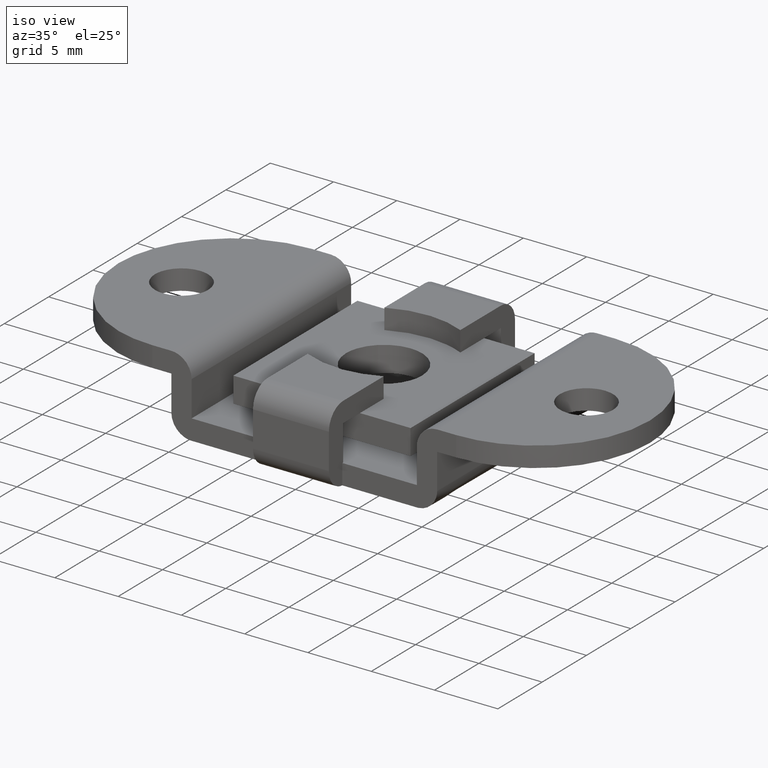
[diagram: clean part render]
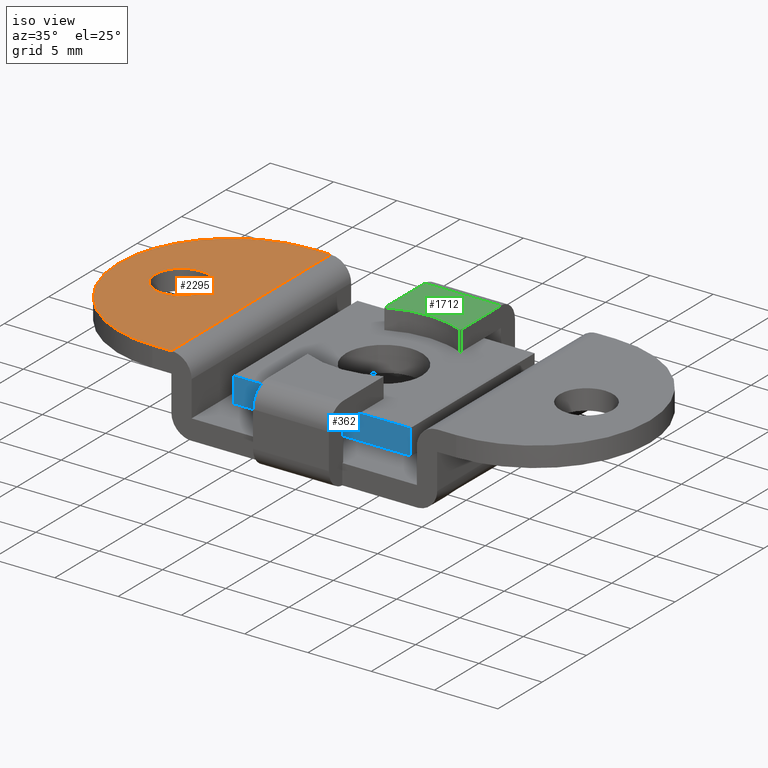
[diagram: same view with three faces highlighted in distinct colors, each labeled with its STEP entity id]
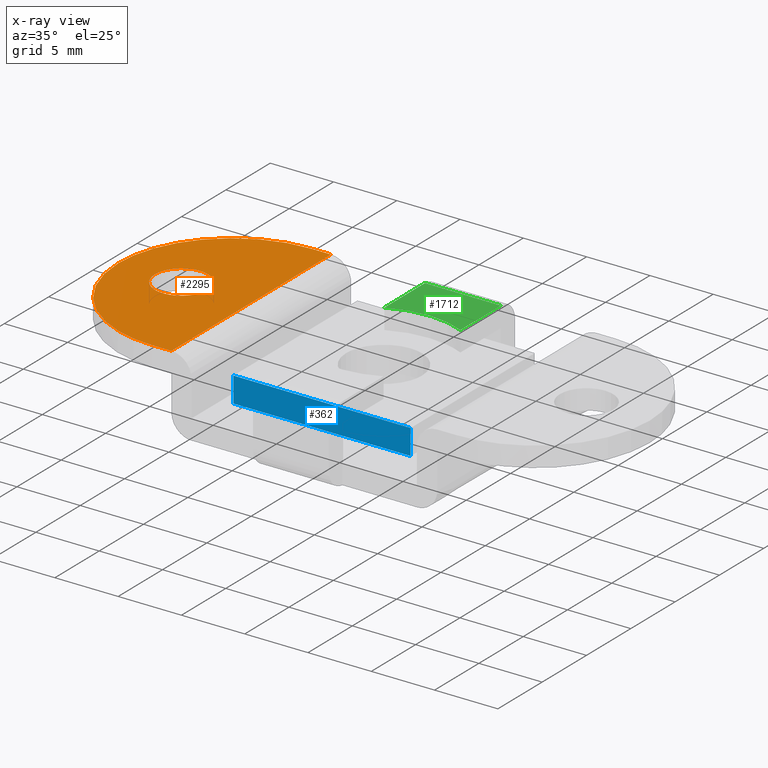
[diagram: x-ray of the same camera — body ghosted, the three highlighted faces saturated]
A machine part, iso view with three faces highlighted in distinct colors.
The next image is the same camera in x-ray (body ghosted, the three faces saturated) — at least one of them is partly hidden behind the body in this view.
Their STEP definitions:

[orange] entity #2295 — the highlighted face is a freeform B-spline surface patch.
#841=CARTESIAN_POINT('',(-14.476713900802160,1.445544507450665,6.0));
#842=VERTEX_POINT('',#841);
#848=CARTESIAN_POINT('',(-16.000000512101650,2.099999999999938,6.0));
#849=VERTEX_POINT('',#848);
#850=CARTESIAN_POINT('',(-14.476713900802160,1.445544507450665,6.0));
#851=CARTESIAN_POINT('',(-14.617190560568890,1.593711484043368,6.000000000000009));
#852=CARTESIAN_POINT('',(-14.885391403838060,1.804133520347521,6.000000000000001));
#853=CARTESIAN_POINT('',(-15.405348990218300,2.039375682377373,6.000000000000007));
#854=CARTESIAN_POINT('',(-15.769186279203099,2.100134379405195,6.000000000000050));
#855=CARTESIAN_POINT('',(-16.000000512101650,2.099999999999938,6.0));
#856=B_SPLINE_CURVE_WITH_KNOTS('',3,(#850,#851,#852,#853,#854,#855),.UNSPECIFIED.,.F.,.U.,(4,1,1,4),(0.000000013370970,0.612494595998296,1.011940877106440,1.704325912010658),.UNSPECIFIED.);
#857=EDGE_CURVE('',#842,#849,#856,.T.);
#859=CARTESIAN_POINT('',(-18.100000000000001,0.0,6.0));
#860=VERTEX_POINT('',#859);
#861=CARTESIAN_POINT('',(-16.000000512101650,2.099999999999938,6.0));
#862=CARTESIAN_POINT('',(-16.171807783640070,2.100041514918341,5.999999999999997));
#863=CARTESIAN_POINT('',(-16.515405789018288,2.057601591833775,6.000000000000017));
#864=CARTESIAN_POINT('',(-16.943390267629830,1.892525328462123,5.999999999999978));
#865=CARTESIAN_POINT('',(-17.320507216173478,1.650442646713644,6.000000000000042));
#866=CARTESIAN_POINT('',(-17.613181813747818,1.368362274713230,5.999999999999893));
#867=CARTESIAN_POINT('',(-17.864683930263968,0.996897922856978,6.000000000000163));
#868=CARTESIAN_POINT('',(-18.049920703954950,0.549746130266517,5.999999999999930));
#869=CARTESIAN_POINT('',(-18.100074452988920,0.197581610387514,6.000000000000103));
#870=CARTESIAN_POINT('',(-18.100000000000001,0.0,6.0));
#871=B_SPLINE_CURVE_WITH_KNOTS('',3,(#861,#862,#863,#864,#865,#866,#867,#868,#869,#870),.UNSPECIFIED.,.F.,.U.,(4,1,1,1,1,1,1,4),(0.000000046252011,0.515415787775858,1.030845410788452,1.365876111623665,1.855501877025961,2.242075191238146,2.705963876297877,3.298692695409696),.UNSPECIFIED.);
#872=EDGE_CURVE('',#849,#860,#871,.T.);
#874=CARTESIAN_POINT('',(-17.523286099197840,-1.445544507450659,6.0));
#875=VERTEX_POINT('',#874);
#876=CARTESIAN_POINT('',(-18.100000000000001,0.0,6.0));
#877=CARTESIAN_POINT('',(-18.100028026367060,-0.149473970522556,5.999999999999981));
#878=CARTESIAN_POINT('',(-18.074171064151990,-0.390275636764554,6.000000000000020));
#879=CARTESIAN_POINT('',(-17.975703712147538,-0.734291597053197,5.999999999999979));
#880=CARTESIAN_POINT('',(-17.816958433183249,-1.083176735437412,6.000000000000078));
#881=CARTESIAN_POINT('',(-17.643358195589538,-1.319078019589394,5.999999999999869));
#882=CARTESIAN_POINT('',(-17.523286099197840,-1.445544507450659,6.0));
#883=B_SPLINE_CURVE_WITH_KNOTS('',3,(#876,#877,#878,#879,#880,#881,#882),.UNSPECIFIED.,.F.,.U.,(4,1,1,1,4),(0.000000010962490,0.448416419998087,0.722448413895785,1.071213996347360,1.594367552685079),.UNSPECIFIED.);
#884=EDGE_CURVE('',#860,#875,#883,.T.);
#979=CARTESIAN_POINT('',(-15.999999487898320,-2.099999999999938,6.0));
#980=VERTEX_POINT('',#979);
#981=CARTESIAN_POINT('',(-17.523286099197840,-1.445544507450659,6.0));
#982=CARTESIAN_POINT('',(-17.431641949486931,-1.542137640411951,6.000000000000003));
#983=CARTESIAN_POINT('',(-17.223169624313751,-1.723658990078200,6.0));
#984=CARTESIAN_POINT('',(-16.843757964454859,-1.940896776863872,6.000000000000024));
#985=CARTESIAN_POINT('',(-16.426074551988890,-2.072062016538133,5.999999999999944));
#986=CARTESIAN_POINT('',(-16.133148976420149,-2.100011490689612,6.000000000000023));
#987=CARTESIAN_POINT('',(-15.999999487898320,-2.099999999999938,6.0));
#988=B_SPLINE_CURVE_WITH_KNOTS('',3,(#981,#982,#983,#984,#985,#986,#987),.UNSPECIFIED.,.F.,.U.,(4,1,1,1,4),(0.000000013369385,0.399450989976564,0.825540147693789,1.304874935396144,1.704325912010689),.UNSPECIFIED.);
#989=EDGE_CURVE('',#875,#980,#988,.T.);
#991=CARTESIAN_POINT('',(-13.900000000000000,0.0,6.0));
#992=VERTEX_POINT('',#991);
#993=CARTESIAN_POINT('',(-15.999999487898320,-2.099999999999938,6.0));
#994=CARTESIAN_POINT('',(-15.871146813442820,-2.100009352253163,6.000000000000010));
#995=CARTESIAN_POINT('',(-15.579069460164730,-2.073056836228151,5.999999999999992));
#996=CARTESIAN_POINT('',(-15.199084391894370,-1.955235297415357,6.000000000000008));
#997=CARTESIAN_POINT('',(-14.819247095116800,-1.752214739977726,5.999999999999973));
#998=CARTESIAN_POINT('',(-14.463104890885230,-1.463625838826628,6.000000000000068));
#999=CARTESIAN_POINT('',(-14.179096144232320,-1.080672087322911,5.999999999999859));
#1000=CARTESIAN_POINT('',(-13.958993124757960,-0.584044329764930,6.000000000000028));
#1001=CARTESIAN_POINT('',(-13.899838745501500,-0.231965859635390,6.000000000000007));
#1002=CARTESIAN_POINT('',(-13.900000000000000,0.0,6.0));
#1003=B_SPLINE_CURVE_WITH_KNOTS('',3,(#993,#994,#995,#996,#997,#998,#999,#1000,#1001,#1002),.UNSPECIFIED.,.F.,.U.,(4,1,1,1,1,1,1,4),(0.000000046266399,0.386563756360412,0.876216372628762,1.185474047194867,1.675103511967079,2.242075191242816,2.602876301059142,3.298692695409619),.UNSPECIFIED.);
#1004=EDGE_CURVE('',#980,#992,#1003,.T.);
#1006=CARTESIAN_POINT('',(-13.900000000000000,0.0,6.0));
#1007=CARTESIAN_POINT('',(-13.899975906333349,0.149473408352246,5.999999999999991));
#1008=CARTESIAN_POINT('',(-13.925825652329371,0.390275975504320,6.0));
#1009=CARTESIAN_POINT('',(-14.031154425482280,0.758299581505137,5.999999999999999));
#1010=CARTESIAN_POINT('',(-14.196370853570180,1.104855756144075,6.000000000000033));
#1011=CARTESIAN_POINT('',(-14.373805741293790,1.337137675406299,5.999999999999973));
#1012=CARTESIAN_POINT('',(-14.476713900802160,1.445544507450665,6.0));
#1013=B_SPLINE_CURVE_WITH_KNOTS('',3,(#1006,#1007,#1008,#1009,#1010,#1011,#1012),.UNSPECIFIED.,.F.,.U.,(4,1,1,1,4),(0.000000010960096,0.448416419996520,0.722448413894702,1.145951143655223,1.594367552685096),.UNSPECIFIED.);
#1014=EDGE_CURVE('',#992,#842,#1013,.T.);
#1078=CARTESIAN_POINT('',(-10.500000000000000,9.0,6.0));
#1079=VERTEX_POINT('',#1078);
#1096=CARTESIAN_POINT('',(-10.500000000000000,-9.0,6.0));
#1097=VERTEX_POINT('',#1096);
#1098=CARTESIAN_POINT('',(-10.500000000000000,-9.0,6.0));
#1099=CARTESIAN_POINT('',(-10.500000000000000,9.0,6.0));
#1100=QUASI_UNIFORM_CURVE('',1,(#1098,#1099),.UNSPECIFIED.,.F.,.U.);
#1101=EDGE_CURVE('',#1097,#1079,#1100,.T.);
#2212=CARTESIAN_POINT('',(-20.999999999999979,-0.000000492002263,5.999999999999999));
#2213=VERTEX_POINT('',#2212);
#2214=CARTESIAN_POINT('',(-12.0,-9.0,6.0));
#2215=VERTEX_POINT('',#2214);
#2216=CARTESIAN_POINT('',(-20.999999999999979,-0.000000492002263,5.999999999999999));
#2217=CARTESIAN_POINT('',(-21.000017458170330,-0.460192757562808,5.999999999999994));
#2218=CARTESIAN_POINT('',(-20.922216221663181,-1.472622714565136,6.000000000000014));
#2219=CARTESIAN_POINT('',(-20.576369840477451,-2.853372033155439,5.999999999999961));
#2220=CARTESIAN_POINT('',(-20.045680813387062,-4.091254661129163,6.000000000000057));
#2221=CARTESIAN_POINT('',(-19.470166318687632,-5.058146512001476,5.999999999999910));
#2222=CARTESIAN_POINT('',(-18.749986696335810,-5.992755713522893,6.000000000000147));
#2223=CARTESIAN_POINT('',(-17.977416455692971,-6.760610197586144,6.000000000000096));
#2224=CARTESIAN_POINT('',(-17.101492625195188,-7.435549433114717,5.999999999999775));
#2225=CARTESIAN_POINT('',(-16.236464570711320,-7.964907477823433,6.000000000000633));
#2226=CARTESIAN_POINT('',(-15.062773889493410,-8.502585460576816,5.999999999999645));
#2227=CARTESIAN_POINT('',(-13.638281368717999,-8.901461753935296,6.000000000000189));
#2228=CARTESIAN_POINT('',(-12.533825617188660,-9.000046753430839,5.999999999999946));
#2229=CARTESIAN_POINT('',(-12.0,-9.0,6.0));
#2230=B_SPLINE_CURVE_WITH_KNOTS('',3,(#2216,#2217,#2218,#2219,#2220,#2221,#2222,#2223,#2224,#2225,#2226,#2227,#2228,#2229),.UNSPECIFIED.,.F.,.U.,(4,1,1,1,1,1,1,1,1,1,1,4),(0.000000022798286,1.380580917047190,3.037284337878926,4.252204953771917,5.411893728071989,6.405927606251880,7.786493352747754,8.670067688307988,9.719315236568200,10.823786102033040,12.535715583765739,14.137188840964971),.UNSPECIFIED.);
#2231=EDGE_CURVE('',#2213,#2215,#2230,.T.);
#2233=CARTESIAN_POINT('',(-12.0,9.0,6.0));
#2234=VERTEX_POINT('',#2233);
#2235=CARTESIAN_POINT('',(-12.0,9.0,6.0));
#2236=CARTESIAN_POINT('',(-12.386559123580160,9.000008877647325,6.000000000000004));
#2237=CARTESIAN_POINT('',(-13.233315466013330,8.945378257814307,5.999999999999997));
#2238=CARTESIAN_POINT('',(-14.552673809467141,8.670324509156375,5.999999999999991));
#2239=CARTESIAN_POINT('',(-15.777685392209010,8.202089490778331,6.000000000000053));
#2240=CARTESIAN_POINT('',(-16.745265029250241,7.665617651566062,5.999999999999919));
#2241=CARTESIAN_POINT('',(-17.531951090156738,7.118756660277457,6.000000000000051));
#2242=CARTESIAN_POINT('',(-18.427939340503190,6.350744385040343,5.999999999999888));
#2243=CARTESIAN_POINT('',(-19.366672068470749,5.255739431751869,6.000000000000014));
#2244=CARTESIAN_POINT('',(-20.110882340733159,3.978708712704968,6.000000000000002));
#2245=CARTESIAN_POINT('',(-20.634251945051190,2.658292581724934,6.000000000000054));
#2246=CARTESIAN_POINT('',(-20.933661779649871,1.362175122086249,5.999999999999841));
#2247=CARTESIAN_POINT('',(-21.000013492620930,0.423377373264621,6.000000000000187));
#2248=CARTESIAN_POINT('',(-20.999999999999979,-0.000000492002263,5.999999999999999));
#2249=B_SPLINE_CURVE_WITH_KNOTS('',3,(#2235,#2236,#2237,#2238,#2239,#2240,#2241,#2242,#2243,#2244,#2245,#2246,#2247,#2248),.UNSPECIFIED.,.F.,.U.,(4,1,1,1,1,1,1,1,1,1,1,4),(0.000000022780315,1.159680174825420,2.540271529334170,4.031309197684729,5.080555616253657,5.853691335475244,6.902931577631438,8.614839774243121,10.161102616878260,11.320798300691839,12.867052614014170,14.137189395567070),.UNSPECIFIED.);
#2250=EDGE_CURVE('',#2234,#2213,#2249,.T.);
#2267=CARTESIAN_POINT('',(-21.524474979648939,-9.899099965112507,6.0));
#2268=CARTESIAN_POINT('',(-9.975524738719090,-9.899099965112507,6.0));
#2269=CARTESIAN_POINT('',(-21.524474979648939,9.899100447910129,6.0));
#2270=CARTESIAN_POINT('',(-9.975524738719090,9.899100447910129,6.0));
#2271=B_SPLINE_SURFACE_WITH_KNOTS('',1,1,((#2267,#2269),(#2268,#2270)),.UNSPECIFIED.,.F.,.F.,.U.,(2,2),(2,2),(0.0,11.548950240929850),(0.0,19.798200413022631),.UNSPECIFIED.);
#2272=CARTESIAN_POINT('',(-10.500000000000000,-9.0,6.0));
#2273=CARTESIAN_POINT('',(-12.0,-9.0,6.0));
#2274=QUASI_UNIFORM_CURVE('',1,(#2272,#2273),.UNSPECIFIED.,.F.,.U.);
#2275=EDGE_CURVE('',#1097,#2215,#2274,.T.);
#2276=ORIENTED_EDGE('',*,*,#2275,.F.);
#2277=ORIENTED_EDGE('',*,*,#1101,.T.);
#2278=CARTESIAN_POINT('',(-10.500000000000000,9.0,6.0));
#2279=CARTESIAN_POINT('',(-12.0,9.0,6.0));
#2280=QUASI_UNIFORM_CURVE('',1,(#2278,#2279),.UNSPECIFIED.,.F.,.U.);
#2281=EDGE_CURVE('',#1079,#2234,#2280,.T.);
#2282=ORIENTED_EDGE('',*,*,#2281,.T.);
#2283=ORIENTED_EDGE('',*,*,#2250,.T.);
#2284=ORIENTED_EDGE('',*,*,#2231,.T.);
#2285=EDGE_LOOP('',(#2276,#2277,#2282,#2283,#2284));
#2286=FACE_OUTER_BOUND('',#2285,.T.);
#2287=ORIENTED_EDGE('',*,*,#872,.F.);
#2288=ORIENTED_EDGE('',*,*,#857,.F.);
#2289=ORIENTED_EDGE('',*,*,#1014,.F.);
#2290=ORIENTED_EDGE('',*,*,#1004,.F.);
#2291=ORIENTED_EDGE('',*,*,#989,.F.);
#2292=ORIENTED_EDGE('',*,*,#884,.F.);
#2293=EDGE_LOOP('',(#2287,#2288,#2289,#2290,#2291,#2292));
#2294=FACE_BOUND('',#2293,.T.);
#2295=ADVANCED_FACE('',(#2286,#2294),#2271,.T.);

[blue] entity #362 — the highlighted face is a freeform B-spline surface patch.
#230=CARTESIAN_POINT('',(-7.0,-7.0,2.399999999999960));
#231=VERTEX_POINT('',#230);
#244=CARTESIAN_POINT('',(7.0,-7.0,2.399999999999960));
#245=VERTEX_POINT('',#244);
#251=CARTESIAN_POINT('',(-7.0,-7.0,2.399999999999960));
#252=CARTESIAN_POINT('',(7.0,-7.0,2.399999999999960));
#253=QUASI_UNIFORM_CURVE('',1,(#251,#252),.UNSPECIFIED.,.F.,.U.);
#254=EDGE_CURVE('',#231,#245,#253,.T.);
#274=CARTESIAN_POINT('',(-7.0,-7.0,4.400000000000000));
#275=VERTEX_POINT('',#274);
#281=CARTESIAN_POINT('',(7.0,-7.0,4.400000000000000));
#282=VERTEX_POINT('',#281);
#283=CARTESIAN_POINT('',(-7.0,-7.0,4.400000000000000));
#284=CARTESIAN_POINT('',(7.0,-7.0,4.400000000000000));
#285=QUASI_UNIFORM_CURVE('',1,(#283,#284),.UNSPECIFIED.,.F.,.U.);
#286=EDGE_CURVE('',#275,#282,#285,.T.);
#339=CARTESIAN_POINT('',(7.0,-7.0,4.400000000000000));
#340=CARTESIAN_POINT('',(7.0,-7.0,2.399999999999960));
#341=QUASI_UNIFORM_CURVE('',1,(#339,#340),.UNSPECIFIED.,.F.,.U.);
#342=EDGE_CURVE('',#282,#245,#341,.T.);
#347=CARTESIAN_POINT('',(-7.699299972865286,-7.0,2.300100003876346));
#348=CARTESIAN_POINT('',(-7.699299972865286,-7.0,4.499900049767795));
#349=CARTESIAN_POINT('',(7.699300348374547,-7.0,2.300100003876346));
#350=CARTESIAN_POINT('',(7.699300348374547,-7.0,4.499900049767795));
#351=B_SPLINE_SURFACE_WITH_KNOTS('',1,1,((#347,#349),(#348,#350)),.UNSPECIFIED.,.F.,.F.,.U.,(2,2),(2,2),(0.0,2.199800045891449),(0.0,15.398600321239829),.UNSPECIFIED.);
#352=ORIENTED_EDGE('',*,*,#254,.T.);
#353=ORIENTED_EDGE('',*,*,#342,.F.);
#354=ORIENTED_EDGE('',*,*,#286,.F.);
#355=CARTESIAN_POINT('',(-7.0,-7.0,4.400000000000000));
#356=CARTESIAN_POINT('',(-7.0,-7.0,2.399999999999960));
#357=QUASI_UNIFORM_CURVE('',1,(#355,#356),.UNSPECIFIED.,.F.,.U.);
#358=EDGE_CURVE('',#275,#231,#357,.T.);
#359=ORIENTED_EDGE('',*,*,#358,.T.);
#360=EDGE_LOOP('',(#352,#353,#354,#359));
#361=FACE_OUTER_BOUND('',#360,.T.);
#362=ADVANCED_FACE('',(#361),#351,.F.);

[green] entity #1712 — the highlighted face is a freeform B-spline surface patch.
#1543=CARTESIAN_POINT('',(3.0,8.900000000000000,6.0));
#1544=VERTEX_POINT('',#1543);
#1565=CARTESIAN_POINT('',(-3.0,8.900000000000000,6.0));
#1566=VERTEX_POINT('',#1565);
#1580=CARTESIAN_POINT('',(3.0,8.900000000000000,6.0));
#1581=CARTESIAN_POINT('',(-3.0,8.900000000000000,6.0));
#1582=QUASI_UNIFORM_CURVE('',1,(#1580,#1581),.UNSPECIFIED.,.F.,.U.);
#1583=EDGE_CURVE('',#1544,#1566,#1582,.T.);
#1602=CARTESIAN_POINT('',(-3.0,4.324556000000000,6.0));
#1603=VERTEX_POINT('',#1602);
#1604=CARTESIAN_POINT('',(3.0,4.324556000000000,6.0));
#1605=VERTEX_POINT('',#1604);
#1606=CARTESIAN_POINT('',(-3.0,4.324556000000000,6.0));
#1607=CARTESIAN_POINT('',(-2.562337669332444,4.532239270710338,5.999999999999998));
#1608=CARTESIAN_POINT('',(-1.735536035306330,4.823746053952643,6.000000000000005));
#1609=CARTESIAN_POINT('',(-0.582378159661427,5.000674756677505,5.999999999999990));
#1610=CARTESIAN_POINT('',(0.501603461717037,5.008175100958581,5.999999999999991));
#1611=CARTESIAN_POINT('',(1.688972151288404,4.838604192466037,6.000000000000009));
#1612=CARTESIAN_POINT('',(2.547748569084229,4.539167510673256,5.999999999999982));
#1613=CARTESIAN_POINT('',(3.0,4.324556000000000,6.0));
#1614=B_SPLINE_CURVE_WITH_KNOTS('',3,(#1606,#1607,#1608,#1609,#1610,#1611,#1612,#1613),.UNSPECIFIED.,.F.,.U.,(4,1,1,1,1,4),(8.521514E-009,1.453304152278089,2.615949936316718,3.487923921489772,4.699018720504572,6.200766676415384),.UNSPECIFIED.);
#1615=EDGE_CURVE('',#1603,#1605,#1614,.T.);
#1693=CARTESIAN_POINT('',(3.299699988370836,4.096012581068099,6.0));
#1694=CARTESIAN_POINT('',(-3.299700149303377,4.096012581068099,6.0));
#1695=CARTESIAN_POINT('',(3.299699988370836,9.128543541654876,6.0));
#1696=CARTESIAN_POINT('',(-3.299700149303377,9.128543541654876,6.0));
#1697=B_SPLINE_SURFACE_WITH_KNOTS('',1,1,((#1693,#1695),(#1694,#1696)),.UNSPECIFIED.,.F.,.F.,.U.,(2,2),(2,2),(0.0,6.599400137674213),(0.0,5.032530960586778),.UNSPECIFIED.);
#1698=CARTESIAN_POINT('',(3.0,8.900000000000000,6.0));
#1699=CARTESIAN_POINT('',(3.0,4.324556000000000,6.0));
#1700=QUASI_UNIFORM_CURVE('',1,(#1698,#1699),.UNSPECIFIED.,.F.,.U.);
#1701=EDGE_CURVE('',#1544,#1605,#1700,.T.);
#1702=ORIENTED_EDGE('',*,*,#1701,.F.);
#1703=ORIENTED_EDGE('',*,*,#1583,.T.);
#1704=CARTESIAN_POINT('',(-3.0,8.900000000000000,6.0));
#1705=CARTESIAN_POINT('',(-3.0,4.324556000000000,6.0));
#1706=QUASI_UNIFORM_CURVE('',1,(#1704,#1705),.UNSPECIFIED.,.F.,.U.);
#1707=EDGE_CURVE('',#1566,#1603,#1706,.T.);
#1708=ORIENTED_EDGE('',*,*,#1707,.T.);
#1709=ORIENTED_EDGE('',*,*,#1615,.T.);
#1710=EDGE_LOOP('',(#1702,#1703,#1708,#1709));
#1711=FACE_OUTER_BOUND('',#1710,.T.);
#1712=ADVANCED_FACE('',(#1711),#1697,.F.);